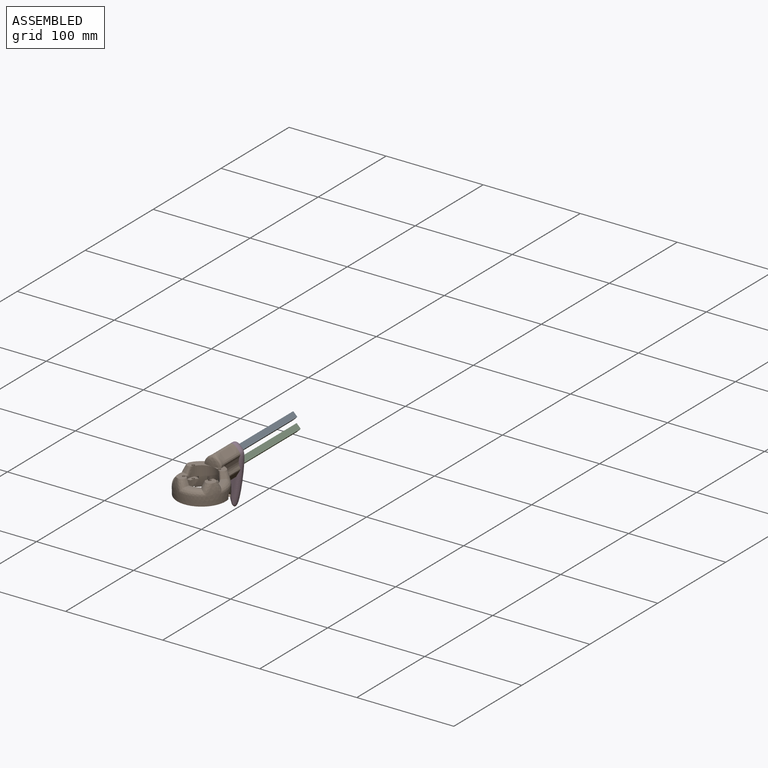
[diagram: assembled view]
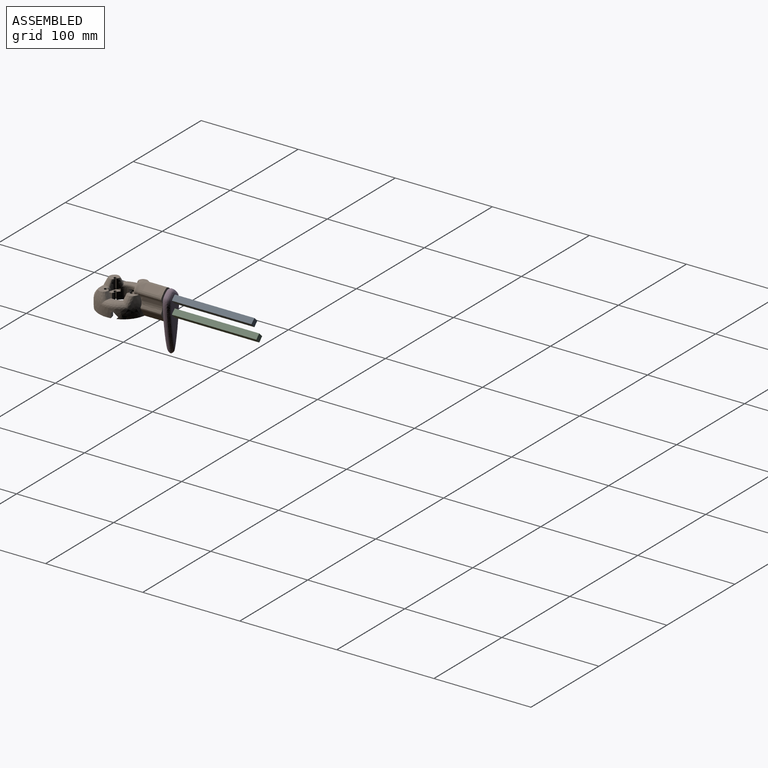
[diagram: assembled view, second angle]
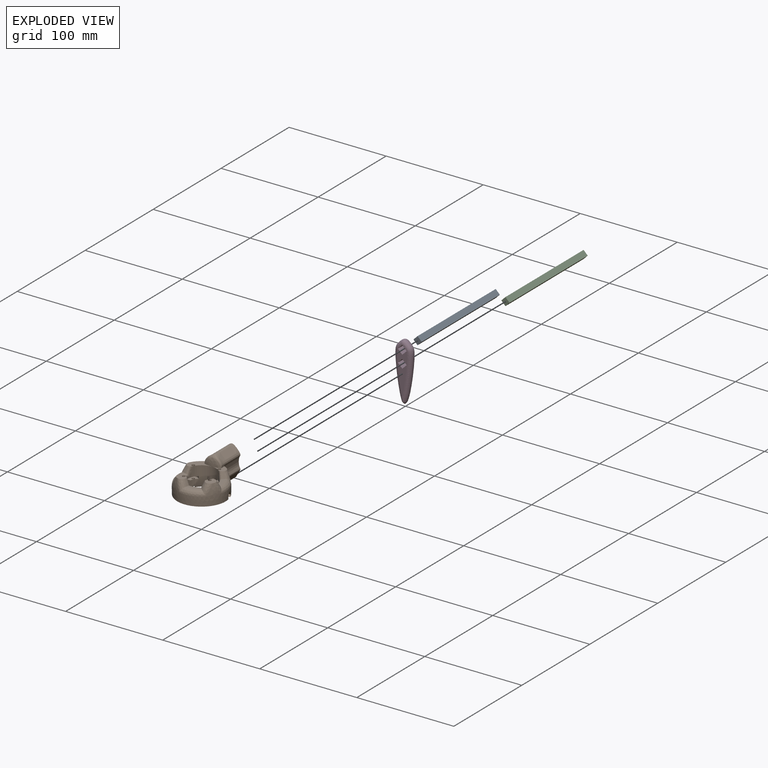
[diagram: exploded view]
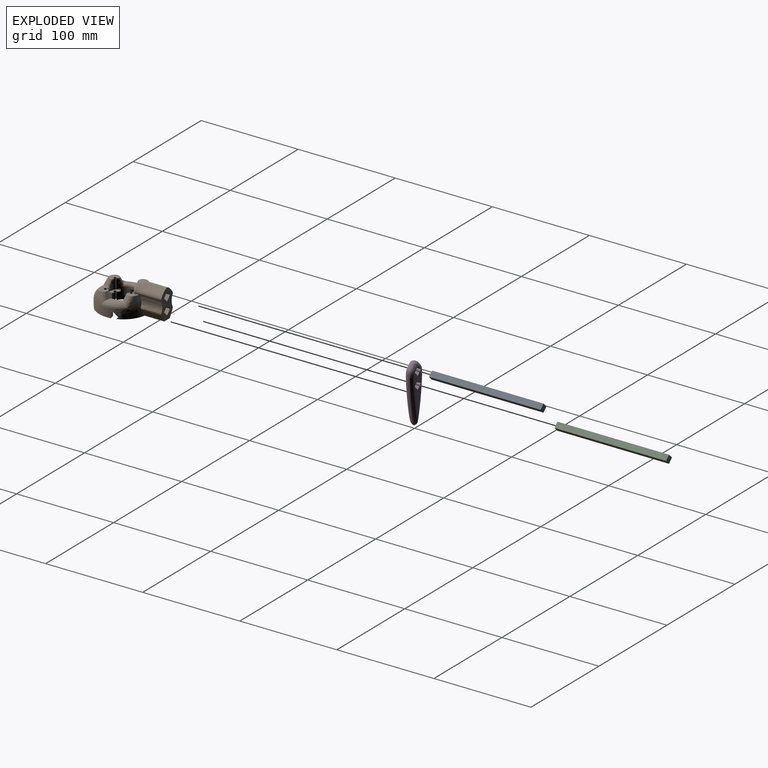
[diagram: exploded view, second angle]
ASSEMBLY  parts=4 mates=3
PART A: 6 faces, bbox 6x115x6 mm
  f0: plane 115x6mm, normal (0,0,1), area 690mm2, adj f1,f3,f4,f5
  f1: plane 115x6mm, normal (-1,0,0), area 690mm2, adj f0,f2,f4,f5
  f2: plane 115x6mm, normal (0,0,-1), area 690mm2, adj f1,f3,f4,f5
  f3: plane 115x6mm, normal (1,0,0), area 690mm2, adj f0,f2,f4,f5
  f4: plane 6x6mm, normal (0,-1,0), area 36mm2, adj f0,f1,f2,f3
  f5: plane 6x6mm, normal (0,1,0), area 36mm2, adj f0,f1,f2,f3
PART B: 119 faces, bbox 51.2x70.9x34.2 mm
  f0: bspline ~50.24x49.93mm, area 1800mm2, adj f2,f3,f4,f8,f9,f84,f85,f86
  f1: bspline ~13.05x9.15mm, area 26.2mm2, adj f2,f5,f18,f45,f50,f51,f114,f117
  f2: plane 70x50mm, normal (0,0,-1), area 1181mm2, adj f0,f1,f5,f6,f7,f17,f46,f47
  f3: plane 14.39x10.26mm, normal (0,0,1), area 48.7mm2, adj f0,f5,f11,f17,f83,f90,f96,f98
  f4: plane 20.82x17.29mm, normal (0,0,1), area 128mm2, adj f0,f10,f14,f17,f75,f85,f96,f97
  f5: cylinder r=15mm len=20mm, axis (0,0,1), area 90.9mm2, adj f1,f2,f3,f11,f19,f21,f36,f45
  f6: cylinder r=15mm len=20mm, axis (0,0,1), area 123.6mm2, adj f2,f9,f12,f18,f28,f29,f30,f41
  f7: cylinder r=15mm len=20mm, axis (0,0,1), area 123.6mm2, adj f2,f8,f13,f20,f23,f24,f29,f35
  f8: plane 10.12x9.52mm, normal (0,0,1), area 63mm2, adj f0,f7,f13,f15,f77,f78,f84,f88
  f9: plane 10.12x9.52mm, normal (0,0,1), area 62.4mm2, adj f0,f6,f12,f16,f80,f81,f87,f91
  f10: cylinder r=1.55mm len=10mm, axis (0,0,-1), area 89.9mm2, adj f4,f14,f17,f22
  f11: cylinder r=1.55mm len=10mm, axis (0,0,-1), area 89.9mm2, adj f3,f5,f17,f21
  f12: cylinder r=1.55mm len=10mm, axis (0,0,-1), area 89.9mm2, adj f6,f9,f16,f30
  f13: cylinder r=1.55mm len=10mm, axis (0,0,-1), area 89.9mm2, adj f7,f8,f15,f23
  f14: cylinder r=15mm len=10mm, axis (0,0,1), area 21.8mm2, adj f4,f10,f22,f75
  f15: cylinder r=15mm len=10mm, axis (0,0,1), area 21.8mm2, adj f8,f13,f23,f78
  f16: cylinder r=15mm len=10mm, axis (0,0,1), area 21.8mm2, adj f9,f12,f30,f81
  f17: cylinder r=15mm len=20.01mm, axis (0,0,1), area 330mm2, adj f2,f3,f4,f10,f11,f19,f20,f21
  f18: plane 16.74x10.38mm, normal (0,0,1), area 49.5mm2, adj f1,f6,f41,f42,f43,f44,f45,f50
  f19: plane 16.74x10.38mm, normal (0,0,1), area 49.7mm2, adj f5,f17,f36,f37,f38,f39,f40,f49
  f20: plane 16.74x10.38mm, normal (0,0,1), area 49.7mm2, adj f7,f17,f31,f32,f33,f34,f35,f46
  f21: plane 16.74x10.38mm, normal (0,0,-1), area 88.3mm2, adj f5,f11,f17,f36,f37,f38,f39,f40
  f22: plane 16.74x10.38mm, normal (0,0,-1), area 88.3mm2, adj f10,f14,f17,f31,f32,f33,f34,f35
  f23: plane 16.74x10.38mm, normal (0,0,-1), area 88.3mm2, adj f7,f13,f15,f24,f25,f26,f27,f28
  f24: plane 2.5x1.79mm, normal (0.86,-0.52,0), area 5.2mm2, adj f7,f23,f25,f29
  f25: cylinder r=4.2mm len=5.75mm, axis (0,0,1), area 16.5mm2, adj f23,f24,f26,f29
  f26: cylinder r=20.7mm len=10.46mm, axis (0,0,1), area 27.4mm2, adj f23,f25,f27,f29
  f27: cylinder r=4.2mm len=4.2mm, axis (0,0,1), area 16.5mm2, adj f23,f26,f28,f29
  f28: plane 2.5x2.1mm, normal (-1,0,0), area 5.3mm2, adj f6,f23,f27,f29
  f29: plane 16.74x10.38mm, normal (0,0,1), area 49.7mm2, adj f6,f7,f24,f25,f26,f27,f28,f54
  f30: plane 16.74x10.38mm, normal (0,0,-1), area 88.3mm2, adj f6,f12,f16,f41,f42,f43,f44,f45
  f31: plane 2.5x1.79mm, normal (-0.52,-0.86,0), area 5.2mm2, adj f17,f20,f22,f32
  f32: cylinder r=4.2mm len=5.75mm, axis (0,0,1), area 16.5mm2, adj f20,f22,f31,f33
  f33: cylinder r=20.7mm len=10.46mm, axis (0,0,1), area 27.4mm2, adj f20,f22,f32,f34
  f34: cylinder r=4.2mm len=4.2mm, axis (0,0,1), area 16.5mm2, adj f20,f22,f33,f35
  f35: plane 2.5x2.1mm, normal (0,1,0), area 5.3mm2, adj f7,f20,f22,f34
  f36: plane 2.5x1.79mm, normal (-0.86,0.52,0), area 5.2mm2, adj f5,f19,f21,f37
  f37: cylinder r=4.2mm len=5.75mm, axis (0,0,1), area 16.5mm2, adj f19,f21,f36,f38
  f38: cylinder r=20.7mm len=10.46mm, axis (0,0,1), area 27.4mm2, adj f19,f21,f37,f39
  f39: cylinder r=4.2mm len=4.2mm, axis (0,0,1), area 16.5mm2, adj f19,f21,f38,f40
  f40: plane 2.5x2.1mm, normal (1,0,0), area 5.3mm2, adj f17,f19,f21,f39
  f41: plane 2.5x1.79mm, normal (0.52,0.86,0), area 5.2mm2, adj f6,f18,f30,f42
  f42: cylinder r=4.2mm len=5.75mm, axis (0,0,1), area 16.5mm2, adj f18,f30,f41,f43
  f43: cylinder r=20.7mm len=10.46mm, axis (0,0,1), area 27.4mm2, adj f18,f30,f42,f44
  f44: cylinder r=4.2mm len=4.2mm, axis (0,0,1), area 16.5mm2, adj f18,f30,f43,f45
  f45: plane 2.53x2.13mm, normal (0,-1,0), area 4.4mm2, adj f1,f5,f18,f30,f44
  f46: cylinder r=4mm len=8mm, axis (0,0,1), area 94.2mm2, adj f2,f20,f47,f48
  f47: plane 7.5x2.04mm, normal (0,1,0), area 15.3mm2, adj f2,f7,f20,f46
  f48: plane 7.5x2.04mm, normal (0,-1,0), area 15.3mm2, adj f2,f20,f46,f65
  f49: plane 7.5x2.04mm, normal (1,0,0), area 15.3mm2, adj f2,f17,f19,f53
  f50: plane 0.74x0.64mm, normal (0,-1,0), area 0.2mm2, adj f1,f18,f51
  f51: cylinder r=4mm len=8mm, axis (0,0,1), area 76.1mm2, adj f1,f2,f18,f50,f52,f112,f113,f117
  f52: plane 7.5x2.04mm, normal (0,1,0), area 15.3mm2, adj f2,f18,f51,f63
  f53: cylinder r=4mm len=8mm, axis (0,0,1), area 94.2mm2, adj f2,f19,f49,f55
  f54: plane 7.5x2.04mm, normal (1,0,0), area 15.3mm2, adj f2,f29,f57,f62
  f55: plane 7.5x2.04mm, normal (-1,0,0), area 15.3mm2, adj f2,f19,f53,f64
  f56: plane 7.5x2.04mm, normal (-1,0,0), area 15.3mm2, adj f2,f6,f29,f57
  f57: cylinder r=4mm len=8mm, axis (0,0,1), area 94.2mm2, adj f2,f29,f54,f56
  f58: cylinder r=1.55mm len=7.5mm, axis (0,0,-1), area 67.4mm2, adj f2,f17,f20,f65
  f59: cylinder r=1.55mm len=7.5mm, axis (0,0,-1), area 67.4mm2, adj f2,f5,f19,f64
  f60: cylinder r=1.55mm len=7.5mm, axis (0,0,-1), area 67.4mm2, adj f2,f6,f18,f63
  f61: cylinder r=1.55mm len=7.5mm, axis (0,0,-1), area 67.4mm2, adj f2,f7,f29,f62
  f62: cylinder r=15mm len=7.5mm, axis (0,0,1), area 26.4mm2, adj f2,f29,f54,f61
  f63: cylinder r=15mm len=7.5mm, axis (0,0,1), area 26.4mm2, adj f2,f18,f52,f60
  f64: cylinder r=15mm len=7.5mm, axis (0,0,1), area 26.4mm2, adj f2,f19,f55,f59
  f65: cylinder r=15mm len=7.5mm, axis (0,0,1), area 26.4mm2, adj f2,f20,f48,f58
  f66: plane 13.72x4.48mm, normal (0,0,1), area 14.7mm2, adj f67,f68,f81,f82,f83,f90,f91,f92
  f67: plane 3.65x1.73mm, normal (0.23,0.87,0.45), area 1.6mm2, adj f66,f81,f91
  f68: plane 3.65x1.91mm, normal (0.62,-0.64,0.45), area 1.6mm2, adj f66,f83,f90
  f69: plane 13.72x4.48mm, normal (0,0,1), area 14.7mm2, adj f70,f71,f78,f79,f80,f87,f88,f89
  f70: plane 3.65x1.73mm, normal (0.87,-0.23,0.45), area 1.6mm2, adj f69,f78,f88
  f71: plane 3.65x1.91mm, normal (-0.64,-0.62,0.45), area 1.6mm2, adj f69,f80,f87
  f72: plane 13.72x4.48mm, normal (0,0,1), area 14.7mm2, adj f73,f74,f75,f76,f77,f84,f85,f86
  f73: plane 3.65x1.73mm, normal (-0.23,-0.87,0.45), area 1.6mm2, adj f72,f75,f85
  f74: plane 3.65x1.91mm, normal (-0.62,0.64,0.45), area 1.6mm2, adj f72,f77,f84
  f75: bspline ~11.79x6.79mm, area 49.1mm2, adj f4,f14,f72,f73,f76,f85
  f76: bspline ~17.07x7.91mm, area 94.8mm2, adj f7,f22,f72,f75,f77
  f77: bspline ~12.67x8.78mm, area 49mm2, adj f7,f8,f72,f74,f76,f84
  f78: bspline ~11.79x6.79mm, area 49mm2, adj f8,f15,f69,f70,f79,f88
  f79: bspline ~17.07x7.91mm, area 94.8mm2, adj f6,f23,f69,f78,f80
  f80: bspline ~12.67x8.78mm, area 49mm2, adj f6,f9,f69,f71,f79,f87
  f81: bspline ~11.79x6.79mm, area 49mm2, adj f9,f16,f66,f67,f82,f91
  f82: bspline ~17.07x7.91mm, area 94.8mm2, adj f5,f30,f66,f81,f83
  f83: bspline ~12.67x8.78mm, area 49mm2, adj f3,f5,f66,f68,f82,f90
  f84: bspline ~17.51x11.68mm, area 71.8mm2, adj f0,f8,f72,f74,f77,f86
  f85: bspline ~17.5x12.59mm, area 71.8mm2, adj f0,f4,f72,f73,f75,f86
  f86: bspline ~27.41x11.55mm, area 153.9mm2, adj f0,f72,f84,f85
  f87: bspline ~17.51x11.68mm, area 71.8mm2, adj f0,f9,f69,f71,f80,f89
  f88: bspline ~17.5x12.59mm, area 71.8mm2, adj f0,f8,f69,f70,f78,f89
  f89: bspline ~27.41x11.55mm, area 153.9mm2, adj f0,f69,f87,f88
  f90: bspline ~17.51x11.68mm, area 71.8mm2, adj f0,f3,f66,f68,f83,f92
  f91: bspline ~17.5x12.59mm, area 71.8mm2, adj f0,f9,f66,f67,f81,f92
  f92: bspline ~27.41x11.55mm, area 153.9mm2, adj f0,f66,f90,f91
  f93: extruded ~21.67x15mm, area 345.7mm2, adj f0,f2,f95,f103
  f94: extruded ~21.67x15mm, area 345.7mm2, adj f0,f2,f95,f103
  f95: extruded ~25x17mm, area 918.8mm2, adj f0,f93,f94,f96,f97,f98,f99,f100
  f96: bspline ~19.73x10mm, area 200.6mm2, adj f3,f4,f95,f97,f98,f99,f100
  f97: plane 3.62x1.71mm, normal (-1,0,0.05), area 2.6mm2, adj f0,f4,f95,f96,f99
  f98: plane 3.62x1.71mm, normal (1,0,0.05), area 2.6mm2, adj f0,f3,f95,f96,f100
  f99: bspline ~9.42x6.77mm, area 20.2mm2, adj f95,f96,f97
  f100: bspline ~9.44x6.76mm, area 20.2mm2, adj f95,f96,f98
  f101: plane 20x4.5mm, normal (0.71,0,-0.71), area 127.3mm2, adj f102,f103,f110,f111
  f102: plane 20x4.5mm, normal (-0.71,0,-0.71), area 127.3mm2, adj f101,f103,f109,f111
  f103: plane 30.07x17.15mm, normal (0,1,0), area 319.1mm2, adj f2,f93,f94,f95,f101,f102,f105,f106
  f104: plane 9x9mm, normal (0,1,0), area 40.5mm2, adj f105,f106,f107,f108
  f105: plane 25x4.5mm, normal (0.71,0,0.71), area 159.1mm2, adj f103,f104,f106,f108
  f106: plane 25x4.5mm, normal (0.71,0,-0.71), area 159.1mm2, adj f103,f104,f105,f107
  f107: plane 25x4.5mm, normal (-0.71,0,-0.71), area 159.1mm2, adj f103,f104,f106,f108
  f108: plane 25x4.5mm, normal (-0.71,0,0.71), area 159.1mm2, adj f103,f104,f105,f107
  f109: plane 20x4.5mm, normal (-0.71,0,0.71), area 127.3mm2, adj f102,f103,f110,f111
  f110: plane 20x4.5mm, normal (0.71,0,0.71), area 127.3mm2, adj f101,f103,f109,f111
  f111: plane 9x9mm, normal (0,1,0), area 40.5mm2, adj f101,f102,f109,f110
  f112: plane 5.54x5.32mm, normal (-0.25,0.97,0), area 28.3mm2, adj f0,f2,f51,f113,f116
  f113: bspline ~13.05x9.15mm, area 0.1mm2, adj f51,f112,f117
  f114: plane 9.73x3.28mm, normal (0.18,-0.68,0.71), area 19.4mm2, adj f0,f1,f2,f118
  f115: plane 1.79x1.73mm, normal (0,0.72,-0.7), area 0.1mm2, adj f0,f116,f118
  f116: plane 5.77x3.1mm, normal (-0.18,0.68,-0.71), area 13.7mm2, adj f112,f115,f117,f118
  f117: plane 2.99x1.77mm, normal (-0.18,0.68,-0.71), area 2.8mm2, adj f1,f51,f113,f116,f118
  f118: plane 10.84x6.82mm, normal (0.18,-0.68,-0.71), area 61.7mm2, adj f0,f1,f114,f115,f116,f117
PART C: same geometry as A
PART D: 20 faces, bbox 17.8x8x60.1 mm
  f0: plane 8x4.5mm, normal (0.71,0,-0.71), area 50.9mm2, adj f1,f3,f18,f19
  f1: plane 8x4.5mm, normal (0.71,0,0.71), area 50.9mm2, adj f0,f2,f3,f19
  f2: plane 8x4.5mm, normal (-0.71,0,0.71), area 50.9mm2, adj f1,f3,f18,f19
  f3: plane 47.79x10.21mm, normal (0,-1,0), area 236.2mm2, adj f0,f1,f2,f4,f5,f6,f7,f8
  f4: plane 8x4.5mm, normal (-0.71,0,-0.71), area 50.9mm2, adj f3,f5,f7,f19
  f5: plane 8x4.5mm, normal (0.71,0,-0.71), area 50.9mm2, adj f3,f4,f6,f19
  f6: plane 8x4.5mm, normal (0.71,0,0.71), area 50.9mm2, adj f3,f5,f7,f19
  f7: plane 8x4.5mm, normal (-0.71,0,0.71), area 50.9mm2, adj f3,f4,f6,f19
  f8: bspline ~57.93x10.58mm, area 336.6mm2, adj f3,f9,f14,f15,f16
  f9: extruded ~59.93x17.8mm, area 52mm2, adj f8,f10,f11,f12,f13,f15,f16,f17
  f10: bspline ~58.19x10.63mm, area 335.3mm2, adj f9,f11,f13,f19
  f11: bspline ~3.96x3.8mm, area 14.7mm2, adj f9,f10,f12
  f12: bspline ~57.95x10.6mm, area 336.6mm2, adj f9,f11,f13,f19
  f13: bspline ~8.35x3.8mm, area 17.7mm2, adj f9,f10,f12
  f14: bspline ~3.36x1.43mm, area 0.5mm2, adj f8,f17
  f15: bspline ~5.4x3.66mm, area 14.1mm2, adj f8,f9,f17
  f16: bspline ~3.96x3.8mm, area 8.6mm2, adj f8,f9,f17
  f17: bspline ~58.05x10.58mm, area 335.2mm2, adj f3,f9,f14,f15,f16
  f18: plane 8x4.5mm, normal (-0.71,0,-0.71), area 50.9mm2, adj f0,f2,f3,f19
  f19: plane 47.79x10.21mm, normal (0,1,0), area 236.2mm2, adj f0,f1,f2,f4,f5,f6,f7,f10
PLACE A rot(axis=(0,-1,0),45deg) t=(0,20,11.5)mm
PLACE B at identity
PLACE C rot(axis=(0,-1,0),45deg) t=(0,25,-1.5)mm
PLACE D t=(0,49,0)mm
MATE fastened A.f4 <-> B.f104  axis (0,-1,0) through (0,20,11.5)mm
MATE fastened C.f4 <-> B.f111  axis (0,-1,0) through (0,25,-1.5)mm
MATE fastened D.f3 <-> B.f103  axis (0,-1,0) through (0,45,11.5)mm
